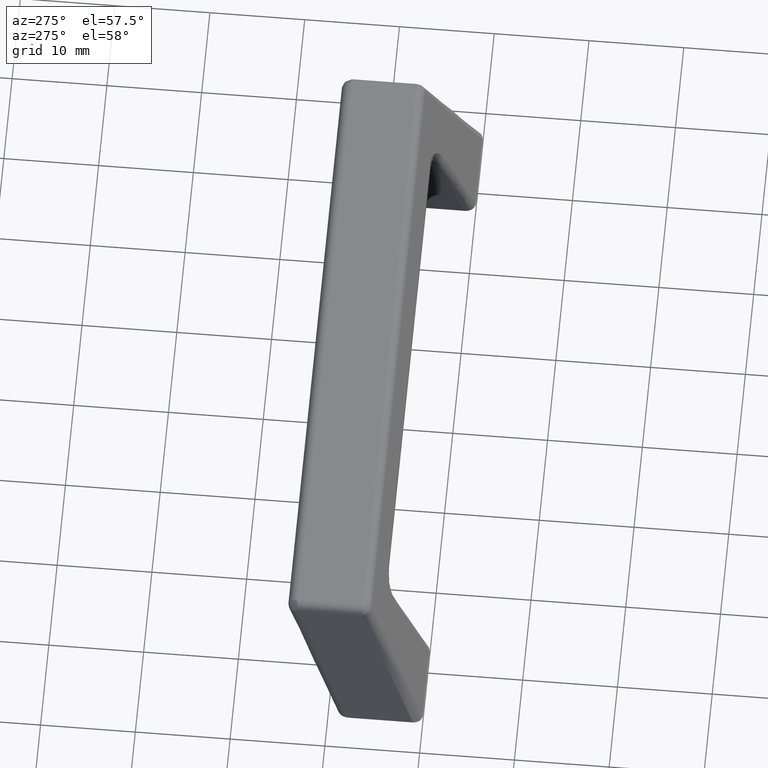
[diagram: clean part render]
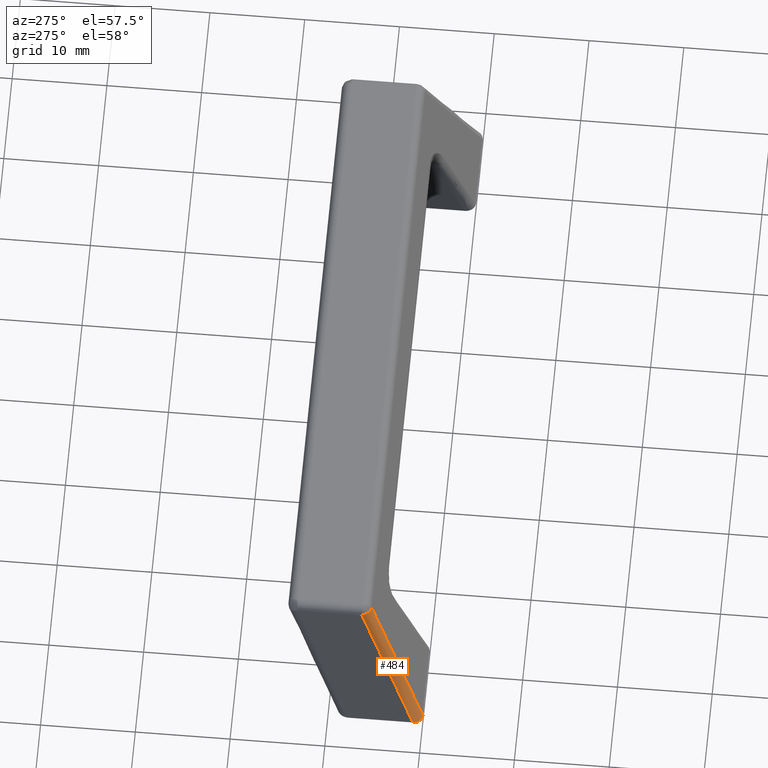
[diagram: same view with one face highlighted and labeled with its STEP entity id]
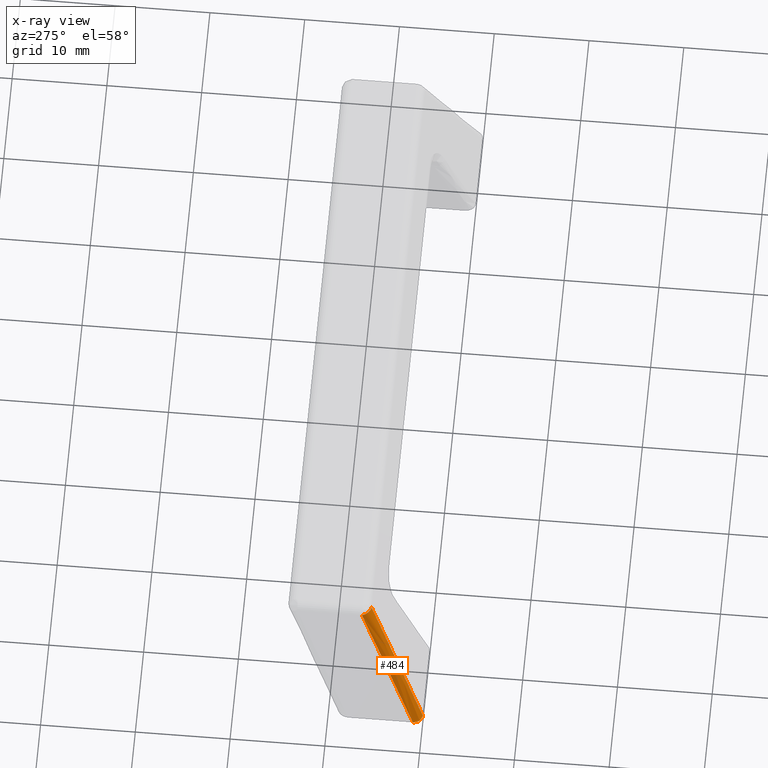
[diagram: x-ray of the same camera — body ghosted, the highlighted face saturated]
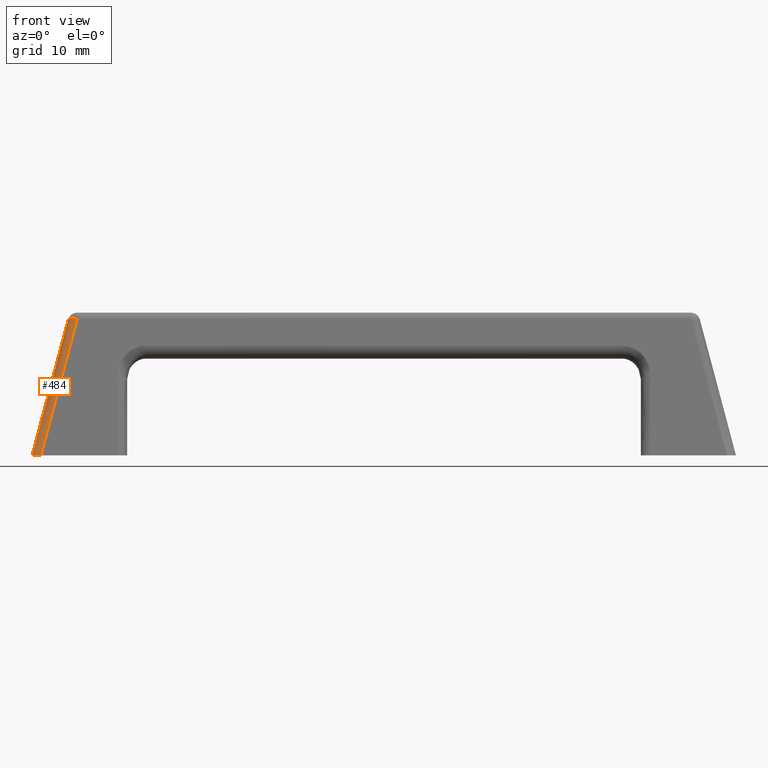
[diagram: same view with one face highlighted and labeled with its STEP entity id]
A machine part, auxiliary view. The second image highlights one B-rep face of the part: STEP entity #484.
The next image is the same camera in x-ray: the body ghosted, the highlighted face saturated — about 0% of this face is hidden behind the body in this view.
A second angle (front view) of the same face is appended — the face is thin or edge-on in the first view.
In plain terms, the highlighted face is a freeform B-spline surface patch.
Its self-contained STEP definition (entity closure, byte-faithful):
#424=CARTESIAN_POINT('',(-36.133998586723393,-0.171931435841658,-0.432421396689708));
#425=CARTESIAN_POINT('',(-32.100829143351277,5.893074295446661,14.731148082145721));
#426=CARTESIAN_POINT('',(-37.103908347703843,-0.123479254819547,-0.193826673971415));
#427=CARTESIAN_POINT('',(-33.070738904331755,5.941526476468769,14.969742804864003));
#428=CARTESIAN_POINT('',(-37.146255522404410,0.808006369652301,-0.555131598096688));
#429=CARTESIAN_POINT('',(-33.113086079032307,6.873012100940617,14.608437880738730));
#437=(BOUNDED_SURFACE()B_SPLINE_SURFACE(1,2,((#424,#426,#428),(#425,#427,#429)),.UNSPECIFIED.,.F.,.F.,.U.)B_SPLINE_SURFACE_WITH_KNOTS((2,2),(3,3),(0.0,16.822145808991792),(0.0,1.0),.UNSPECIFIED.)GEOMETRIC_REPRESENTATION_ITEM()RATIONAL_B_SPLINE_SURFACE(((1.0,0.707106781186548,1.0),(1.0,0.707106781186548,1.0)))REPRESENTATION_ITEM('')SURFACE());
#438=CARTESIAN_POINT('',(-36.064008025065903,0.0,0.0));
#439=VERTEX_POINT('',#438);
#440=CARTESIAN_POINT('',(-37.0,0.974213430681936,0.0));
#441=VERTEX_POINT('',#440);
#442=CARTESIAN_POINT('',(-36.064008025065917,1.149254E-014,0.0));
#443=CARTESIAN_POINT('',(-37.000000000000064,8.218252E-014,0.0));
#444=CARTESIAN_POINT('',(-36.999999999999993,0.974213430681957,0.0));
#452=(BOUNDED_CURVE()B_SPLINE_CURVE(2,(#442,#443,#444),.UNSPECIFIED.,.F.,.U.)CURVE()GEOMETRIC_REPRESENTATION_ITEM()QUASI_UNIFORM_CURVE()RATIONAL_B_SPLINE_CURVE((1.0,0.740086770667669,1.0))REPRESENTATION_ITEM(''));
#453=EDGE_CURVE('',#439,#441,#452,.T.);
#454=ORIENTED_EDGE('',*,*,#453,.F.);
#455=CARTESIAN_POINT('',(-32.241546304475548,5.748147348757859,14.371368397529700));
#456=VERTEX_POINT('',#455);
#457=CARTESIAN_POINT('',(-32.241546304475548,5.748147348757859,14.371368397529700));
#458=CARTESIAN_POINT('',(-36.064008025065903,0.0,0.0));
#459=QUASI_UNIFORM_CURVE('',1,(#457,#458),.UNSPECIFIED.,.F.,.U.);
#460=EDGE_CURVE('',#456,#439,#459,.T.);
#461=ORIENTED_EDGE('',*,*,#460,.F.);
#462=CARTESIAN_POINT('',(-33.207946837801749,6.676632950862850,14.257040870654500));
#463=VERTEX_POINT('',#462);
#464=CARTESIAN_POINT('',(-32.241546304475548,5.748147348757871,14.371368397529700));
#465=CARTESIAN_POINT('',(-33.123735801785401,5.829054521077431,14.573650404037076));
#466=CARTESIAN_POINT('',(-33.207946837801771,6.676632950862833,14.257040870654460));
#474=(BOUNDED_CURVE()B_SPLINE_CURVE(2,(#464,#465,#466),.UNSPECIFIED.,.F.,.U.)CURVE()GEOMETRIC_REPRESENTATION_ITEM()QUASI_UNIFORM_CURVE()RATIONAL_B_SPLINE_CURVE((1.0,0.740086770667667,1.0))REPRESENTATION_ITEM(''));
#475=EDGE_CURVE('',#456,#463,#474,.T.);
#476=ORIENTED_EDGE('',*,*,#475,.T.);
#477=CARTESIAN_POINT('',(-37.0,0.974213430681936,0.0));
#478=CARTESIAN_POINT('',(-33.207946837801749,6.676632950862850,14.257040870654500));
#479=QUASI_UNIFORM_CURVE('',1,(#477,#478),.UNSPECIFIED.,.F.,.U.);
#480=EDGE_CURVE('',#441,#463,#479,.T.);
#481=ORIENTED_EDGE('',*,*,#480,.F.);
#482=EDGE_LOOP('',(#454,#461,#476,#481));
#483=FACE_OUTER_BOUND('',#482,.T.);
#484=ADVANCED_FACE('',(#483),#437,.T.);